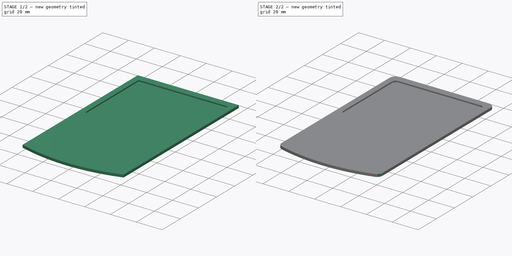
[diagram: build sequence overview — one tinted view per stage of 2, left to right]
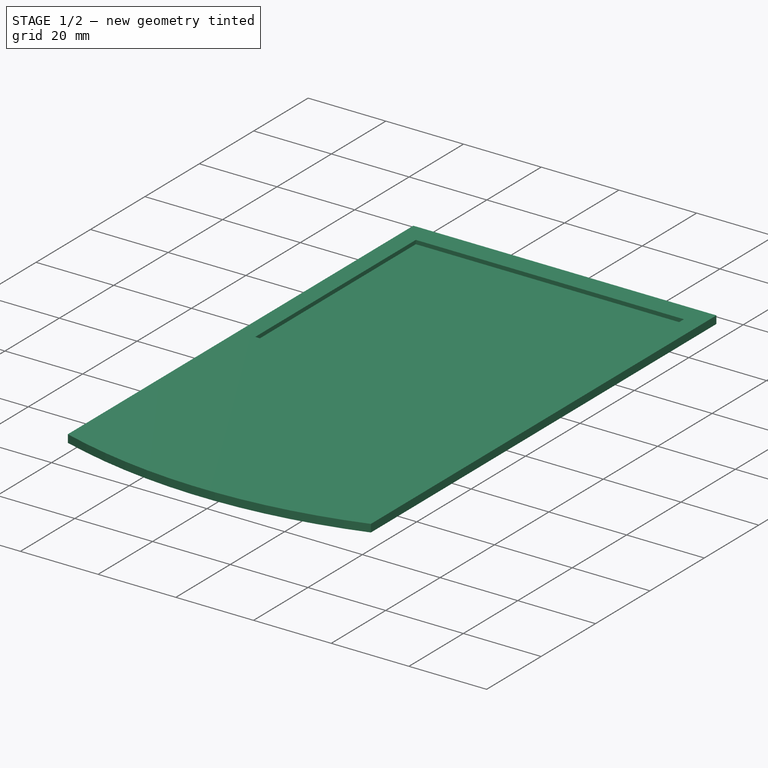
[diagram: stage 1 of 2 — iso view after this stage's code; geometry added in this stage tinted green]
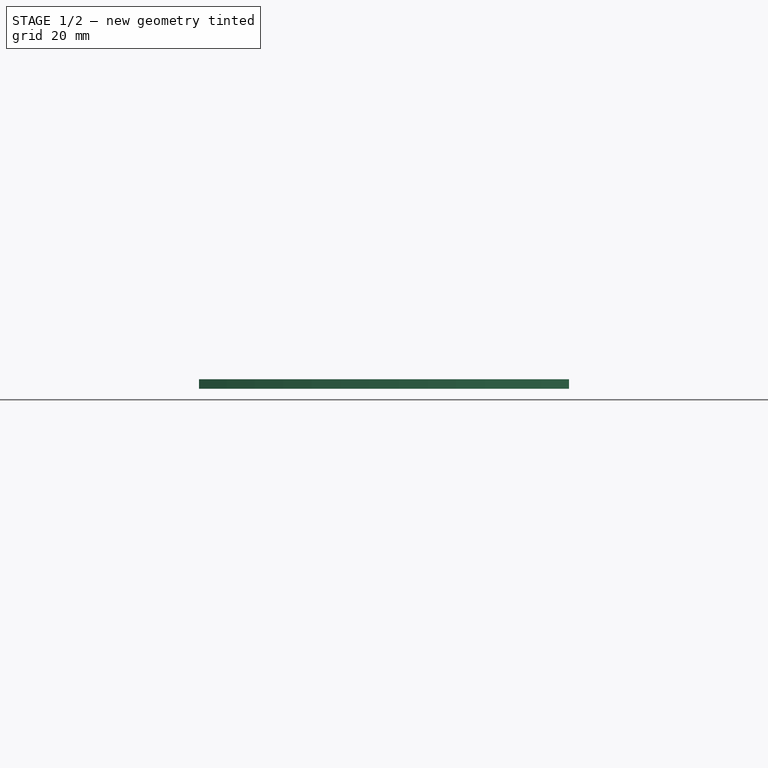
[diagram: stage 1 of 2 — front view after this stage's code; geometry added in this stage tinted green]
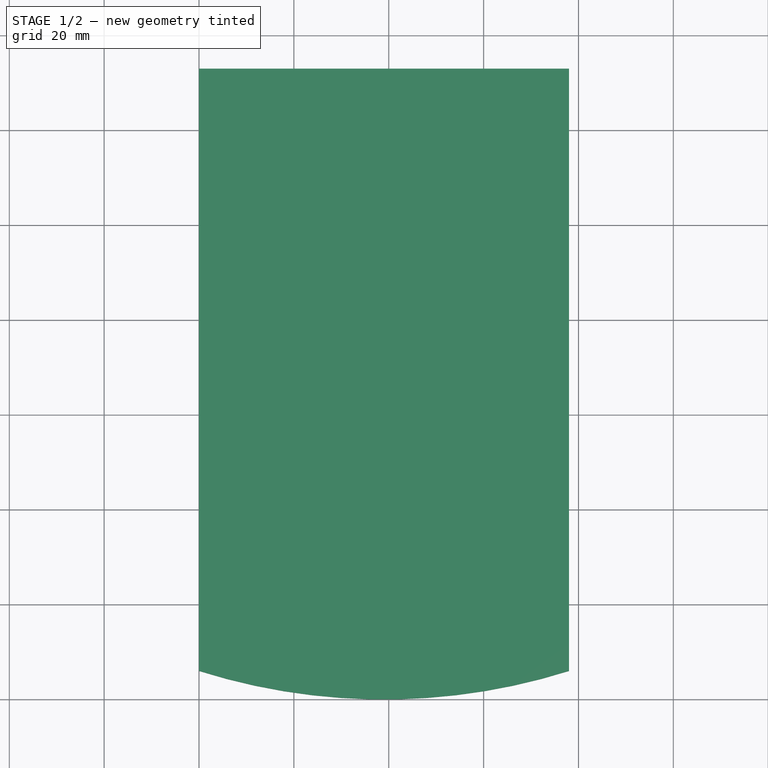
[diagram: stage 1 of 2 — top view after this stage's code; geometry added in this stage tinted green]
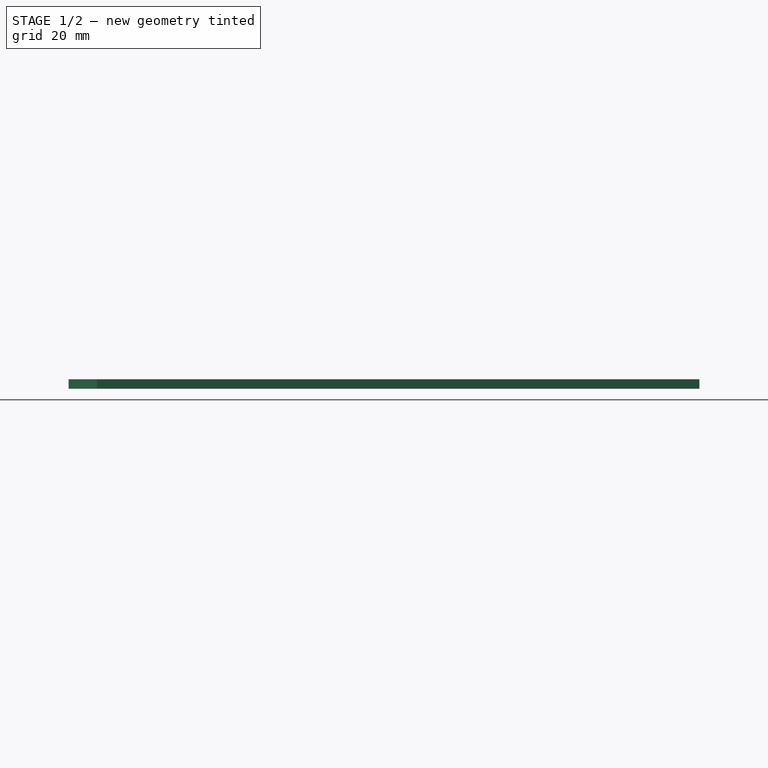
[diagram: stage 1 of 2 — right view after this stage's code; geometry added in this stage tinted green]
FCSTD DOCUMENT  (FreeCAD 0.20R29177 +426 (Git))
Label: GBC Icon
License: Creative Commons Attribution-NonCommercial-ShareAlike
LicenseURL: http://creativecommons.org/licenses/by-nc-sa/4.0/
objects: Sketcher::SketchObject×2, PartDesign::Fillet×2, PartDesign::Pad×1, PartDesign::Pocket×1, PartDesign::Body×1, TechDraw::DrawSVGTemplate×1, TechDraw::DrawViewPart×1, TechDraw::DrawPage×1
note: 11 computed .brp shape members not serialized (recipe doc carries the construction recipe); baked Part::Feature solids carry a one-line shape summary decoded from their .brp

FEATURE [Sketcher::SketchObject] Sketch
  FullyConstrained = true
  MapMode = 5
  Support = -> [XY_Plane]
  sketch-geometry (15):
    g0: LineSegment StartX=0 StartY=0 StartZ=0 EndX=78 EndY=0 EndZ=0
    g1: LineSegment StartX=78 StartY=0 StartZ=0 EndX=78 EndY=133 EndZ=0
    g2: LineSegment StartX=78 StartY=133 StartZ=0 EndX=0 EndY=133 EndZ=0
    g3: LineSegment StartX=0 StartY=133 StartZ=0 EndX=0 EndY=0 EndZ=0
    g4: GeomPoint X=39 Y=0 Z=0
    g5: GeomPoint X=6.39e-14 Y=6 Z=0
    g6: LineSegment StartX=6.39e-14 StartY=6 StartZ=0 EndX=78 EndY=6 EndZ=0
    g7: ArcOfCircle CenterX=39 CenterY=129.75 CenterZ=0 NormalX=0 NormalY=0 NormalZ=1 AngleXU=0 Radius=129.75 StartAngle=4.40709 EndAngle=5.01769
    g8: LineSegment StartX=6.39e-14 StartY=6 StartZ=0 EndX=0 EndY=133 EndZ=0
    g9: LineSegment StartX=0 StartY=133 StartZ=0 EndX=78 EndY=133 EndZ=0
    g10: LineSegment StartX=78 StartY=133 StartZ=0 EndX=78 EndY=6 EndZ=0
    g11: GeomPoint X=0 Y=133 Z=0
    g12: GeomPoint X=0 Y=133 Z=0
    g13: GeomPoint X=0 Y=133 Z=0
    g14: GeomPoint X=0 Y=133 Z=0
  constraints (30):
    c: Coincident(g0,g1)
    c: Coincident(g1,g2)
    c: Coincident(g2,g3)
    c: Coincident(g3,g0)
    c: Horizontal(g0)
    c: Horizontal(g2)
    c: Vertical(g1)
    c: Vertical(g3)
    c: Coincident(g0,g-1)
    c: DistanceX(g2,g2) = 78
    c: DistanceY(g1,g1) = 133
    c: Symmetric(g0,g0,g4)
    c: DistanceY(g0,g5) = 6
    c: PointOnObject(g5,g3)
    c: Coincident(g6,g5)
    c: PointOnObject(g6,g1)
    c: Horizontal(g6)
    c: Coincident(g7,g5)
    c: Coincident(g7,g6)
    c: PointOnObject(g4,g7)
    c: Coincident(g8,g7)
    c: Coincident(g10,g7)
    c: Coincident(g11,g9)
    c: Coincident(g12,g2)
    c: Coincident(g13,g8)
    c: Coincident(g14,g2)
    c: Coincident(g9,g1)
    c: Coincident(g9,g10)
    c: Coincident(g8,g9)
    c: Coincident(g8,g2)
FEATURE [PartDesign::Pad] Pad
  Direction = (0,0,1)
  Length = 2
  Length2 = 10
  Profile = -> Sketch
  ReferenceAxis = -> Sketch [N_Axis]
  Type = 0
FEATURE [Sketcher::SketchObject] Sketch001
  ExternalGeometry = -> [Pad]
  FullyConstrained = true
  MapMode = 5
  Placement = pos=(0,0,2) rot=(0,0,1;0rad)
  Support = -> [Pad]
  sketch-geometry (17):
    g0: LineSegment StartX=0 StartY=133 StartZ=0 EndX=4.5 EndY=133 EndZ=0
    g1: LineSegment StartX=4.5 StartY=133 StartZ=0 EndX=4.5 EndY=127.5 EndZ=0
    g2: LineSegment StartX=4.5 StartY=127.5 StartZ=0 EndX=0 EndY=127.5 EndZ=0
    g3: LineSegment StartX=0 StartY=127.5 StartZ=0 EndX=0 EndY=133 EndZ=0
    g4: LineSegment StartX=78 StartY=133 StartZ=0 EndX=73.5 EndY=133 EndZ=0
    g5: LineSegment StartX=73.5 StartY=133 StartZ=0 EndX=73.5 EndY=127.5 EndZ=0
    g6: LineSegment StartX=73.5 StartY=127.5 StartZ=0 EndX=78 EndY=127.5 EndZ=0
    g7: LineSegment StartX=78 StartY=127.5 StartZ=0 EndX=78 EndY=133 EndZ=0
    g8: LineSegment StartX=4.5 StartY=127.5 StartZ=0 EndX=73.5 EndY=127.5 EndZ=0
    g9: LineSegment StartX=73.5 StartY=127.5 StartZ=0 EndX=73.5 EndY=66.5 EndZ=0
    g10: LineSegment StartX=73.5 StartY=66.5 StartZ=0 EndX=4.5 EndY=66.5 EndZ=0
    g11: LineSegment StartX=4.5 StartY=66.5 StartZ=0 EndX=4.5 EndY=127.5 EndZ=0
    g12: LineSegment StartX=4.5 StartY=68.5 StartZ=0 EndX=73.5 EndY=68.5 EndZ=0
    g13: ArcOfCircle CenterX=39 CenterY=365.063 CenterZ=0 NormalX=0 NormalY=0 NormalZ=1 AngleXU=0 Radius=298.563 StartAngle=4.59658 EndAngle=4.8282
    g14: LineSegment StartX=4.5 StartY=68.5 StartZ=0 EndX=4.5 EndY=127.5 EndZ=0
    g15: LineSegment StartX=4.5 StartY=127.5 StartZ=0 EndX=73.5 EndY=127.5 EndZ=0
    g16: LineSegment StartX=73.5 StartY=127.5 StartZ=0 EndX=73.5 EndY=68.5 EndZ=0
  constraints (45):
    c: Coincident(g0,g1)
    c: Coincident(g1,g2)
    c: Coincident(g2,g3)
    c: Coincident(g3,g0)
    c: Horizontal(g0)
    c: Horizontal(g2)
    c: Vertical(g1)
    c: Vertical(g3)
    c: Coincident(g0,g-3)
    c: Coincident(g4,g5)
    c: Coincident(g5,g6)
    c: Coincident(g6,g7)
    c: Coincident(g7,g4)
    c: Horizontal(g4)
    c: Horizontal(g6)
    c: Vertical(g5)
    c: Vertical(g7)
    c: Coincident(g4,g-3)
    c: Equal(g6,g2)
    c: Equal(g1,g5)
    c: DistanceX(g0,g0) = 4.5
    c: DistanceY(g1,g1) = 5.5
    c: Coincident(g8,g9)
    c: Coincident(g9,g10)
    c: Coincident(g10,g11)
    c: Coincident(g11,g8)
    c: Horizontal(g10)
    c: Vertical(g9)
    c: Vertical(g11)
    c: Coincident(g8,g1)
    c: Coincident(g8,g5)
    c: DistanceY(g9,g9) = 61
    c: PointOnObject(g12,g11)
    c: PointOnObject(g12,g9)
    c: Horizontal(g12)
    c: DistanceY(g10,g12) = 2
    c: Coincident(g13,g12)
    c: Coincident(g13,g12)
    c: Tangent(g13,g10)
    c: Coincident(g14,g13)
    c: Coincident(g14,g1)
    c: Coincident(g15,g14)
    c: Coincident(g15,g5)
    c: Coincident(g16,g15)
    c: Coincident(g16,g13)
FEATURE [PartDesign::Pocket] Pocket
  BaseFeature = -> Pad
  Direction = (0,0,-1)
  Length = 1
  Length2 = 5
  Profile = -> Sketch001
  ReferenceAxis = -> Sketch001 [N_Axis]
  Type = 0
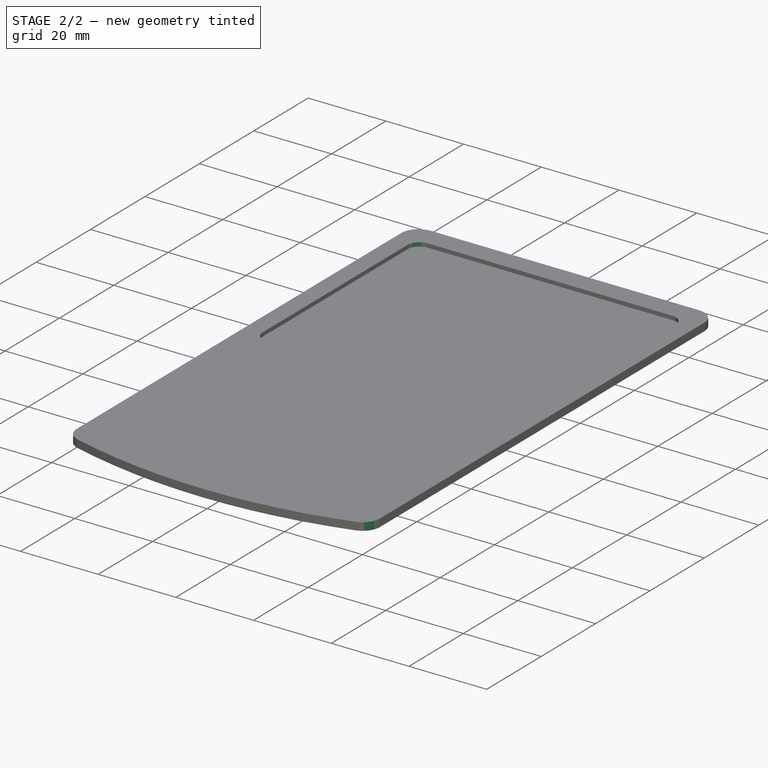
[diagram: stage 2 of 2 — iso view after this stage's code; geometry added in this stage tinted green]
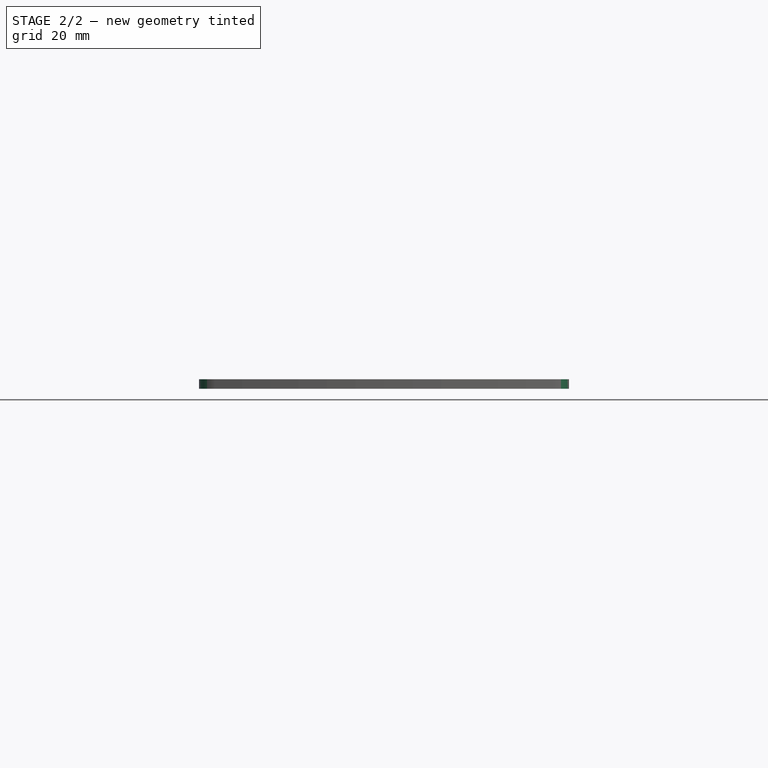
[diagram: stage 2 of 2 — front view after this stage's code; geometry added in this stage tinted green]
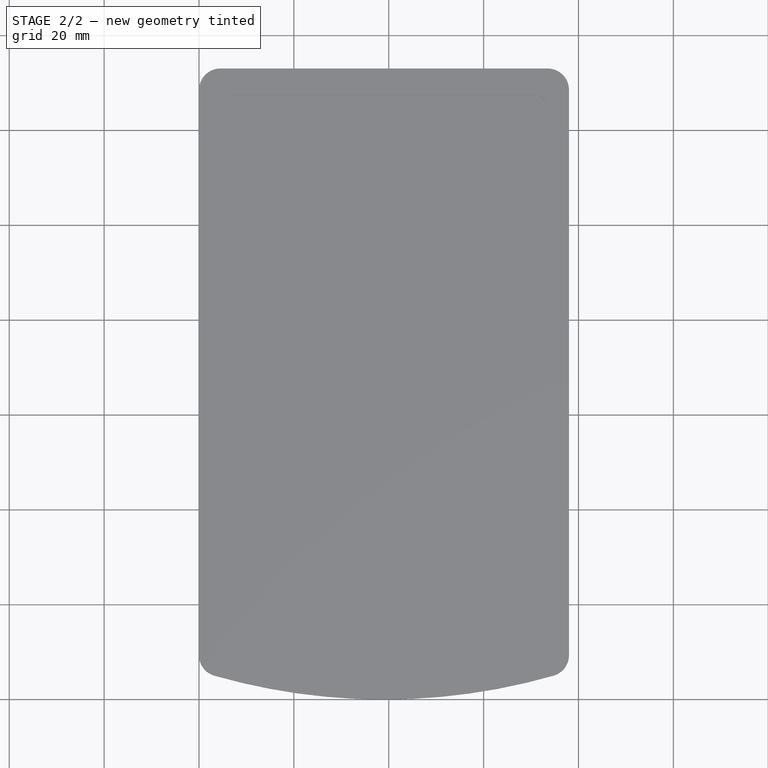
[diagram: stage 2 of 2 — top view after this stage's code; geometry added in this stage tinted green]
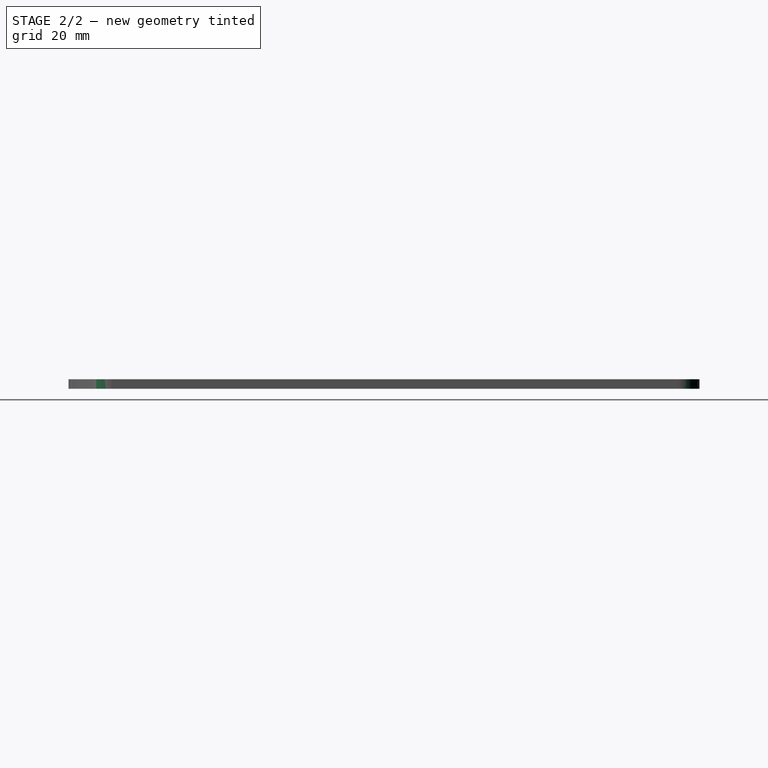
[diagram: stage 2 of 2 — right view after this stage's code; geometry added in this stage tinted green]
FEATURE [PartDesign::Fillet] Fillet
  Base = -> Pocket [Edge18,Edge20,Edge22,Edge17]
  BaseFeature = -> Pocket
  Radius = 3
  SupportTransform = false
  UseAllEdges = false
FEATURE [PartDesign::Fillet] Fillet001
  Base = -> Fillet [Edge30,Edge34,Edge29,Edge32]
  BaseFeature = -> Fillet
  Radius = 4.5
  SupportTransform = false
  UseAllEdges = false
FEATURE [PartDesign::Body] Body
  Group = -> [Sketch,Pad,Sketch001,Pocket,Fillet,Fillet001]
  Origin = -> Origin
  Tip = -> Fillet001
FEATURE [TechDraw::DrawSVGTemplate] Template
  EditableTexts = Approved1=Approved 1; Approved2=Approved 2; CheckedBy=Checked By; Code=Code; CompanyAddress=1234 Main St; CompanyName=Company Name; DrawingNumber=Drawing Number; DrawingTitle1=Drawing Title 1; DrawingTitle2=Drawing Title 2; DrawingTitle3=Drawing Title 3; DrawnBy=Drawn By; Revision=Rev; Scale=Scale; Sheet=Sheet n of m
  Height = 215.9
  Orientation = 1
  Width = 279.4
FEATURE [TechDraw::DrawViewPart] View
  CoarseView = false
  Direction = (0,0,1)
  Focus = 100
  HardHidden = false
  IsoCount = 0
  IsoHidden = false
  IsoVisible = false
  LockPosition = false
  Perspective = false
  Rotation = 0
  ScaleType = 0
  SeamHidden = false
  SeamVisible = true
  SmoothHidden = false
  SmoothVisible = true
  Source = -> [Body]
  X = 68.611
  XDirection = (1,0,0)
  Y = 129.013
FEATURE [TechDraw::DrawPage] Page
  KeepUpdated = true
  NextBalloonIndex = 1
  ProjectionType = 0
  Template = -> Template
  Views = -> [View]
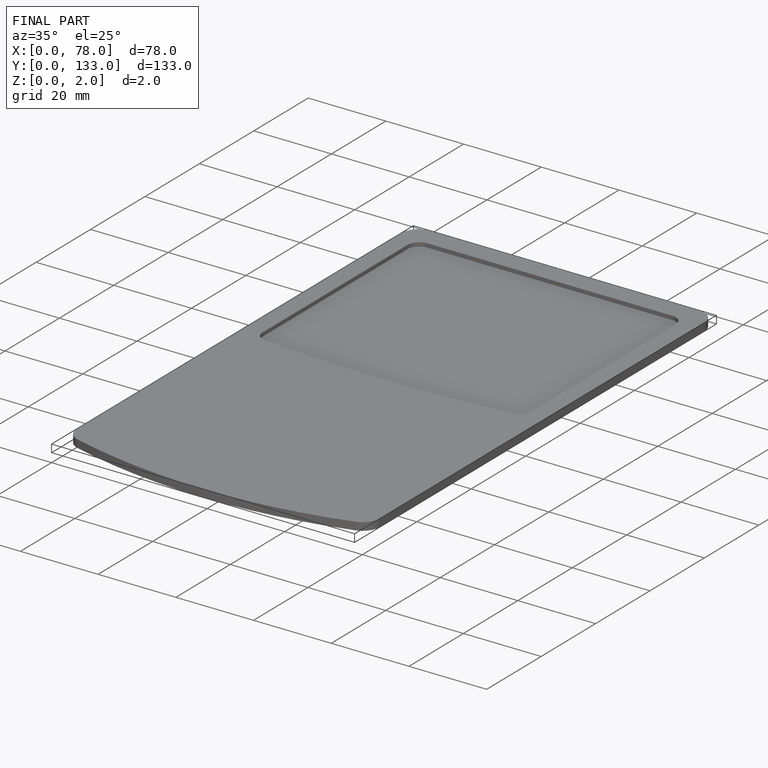
[diagram: finished part — iso view with bounding-box wireframe]
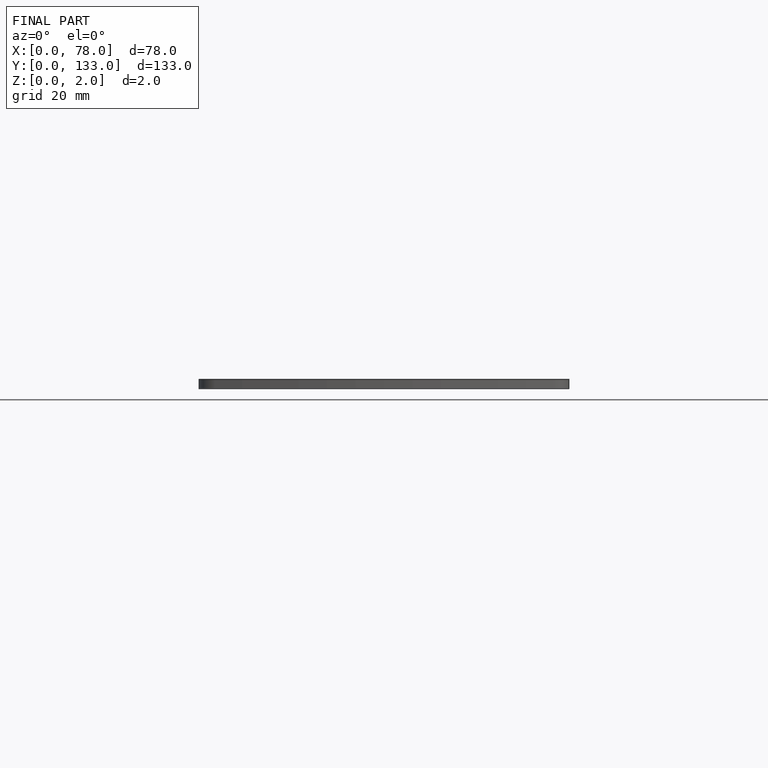
[diagram: finished part — front view with bounding-box wireframe]
